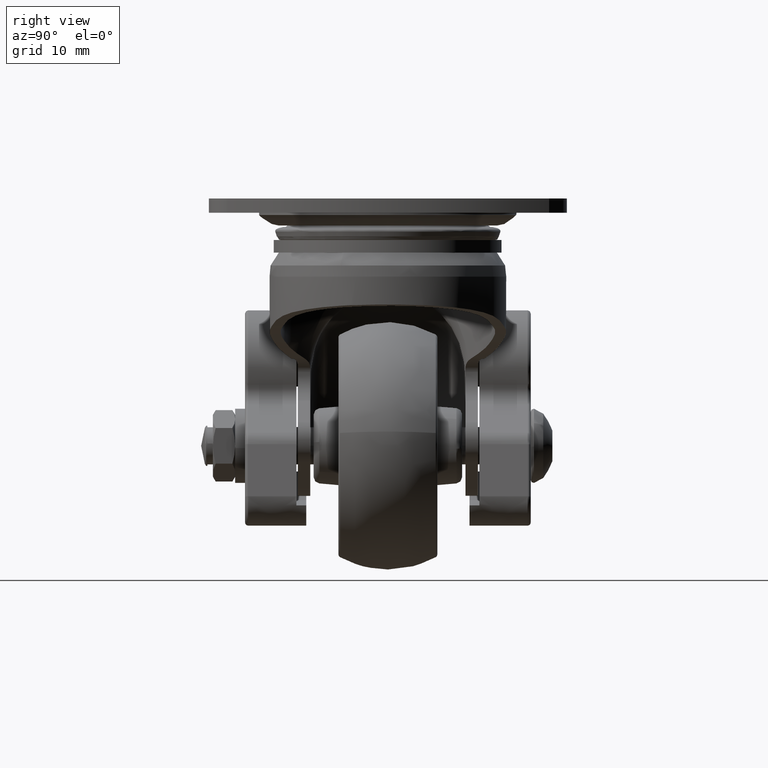
[diagram: clean part render]
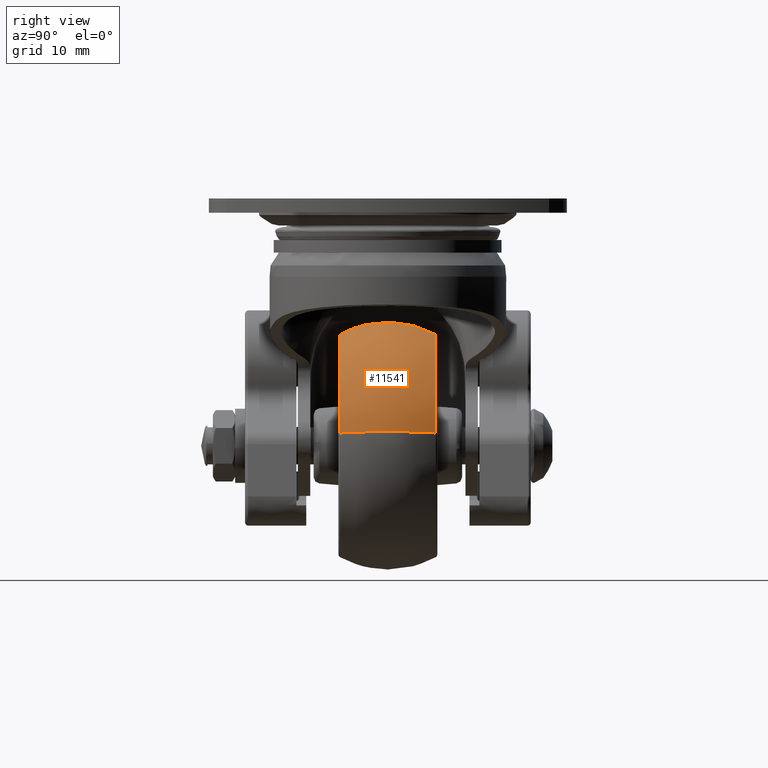
[diagram: same view with one face highlighted and labeled with its STEP entity id]
A machine part, right view. The second image highlights one B-rep face of the part: STEP entity #11541.
In plain terms, the highlighted face is a freeform B-spline surface patch.
Its self-contained STEP definition (entity closure, byte-faithful):
#11003=CARTESIAN_POINT('',(0.0,7.741952714832145,-21.997779884571209));
#11004=VERTEX_POINT('',#11003);
#11018=CARTESIAN_POINT('',(17.881824193224499,7.741935547283804,-37.921386432144438));
#11019=VERTEX_POINT('',#11018);
#11020=CARTESIAN_POINT('',(0.0,7.741952714832145,-21.997779884571209));
#11021=CARTESIAN_POINT('',(16.030836061764578,7.741944131057976,-21.997775138573157));
#11022=CARTESIAN_POINT('',(17.881824193224492,7.741935547283804,-37.921386432144438));
#11030=(BOUNDED_CURVE()B_SPLINE_CURVE(2,(#11020,#11021,#11022),.UNSPECIFIED.,.F.,.U.)B_SPLINE_CURVE_WITH_KNOTS((3,3),(0.0,0.229999999998973),.UNSPECIFIED.)CURVE()GEOMETRIC_REPRESENTATION_ITEM()RATIONAL_B_SPLINE_CURVE((1.0,0.730538238692826,0.956886118188639))REPRESENTATION_ITEM(''));
#11031=EDGE_CURVE('',#11004,#11019,#11030,.T.);
#11092=CARTESIAN_POINT('',(0.0,-7.741936109508062,-21.997770678026122));
#11093=VERTEX_POINT('',#11092);
#11156=CARTESIAN_POINT('',(15.665249883502430,-7.741935452028621,-31.129812845804992));
#11157=VERTEX_POINT('',#11156);
#11171=CARTESIAN_POINT('',(0.0,-7.741936109508062,-21.997770678026122));
#11172=CARTESIAN_POINT('',(10.494382676605845,-7.741935701241673,-21.997770446769177));
#11173=CARTESIAN_POINT('',(15.665249883502440,-7.741935452028621,-31.129812845804992));
#11181=(BOUNDED_CURVE()B_SPLINE_CURVE(2,(#11171,#11172,#11173),.UNSPECIFIED.,.F.,.U.)B_SPLINE_CURVE_WITH_KNOTS((3,3),(0.0,0.166016396880589),.UNSPECIFIED.)CURVE()GEOMETRIC_REPRESENTATION_ITEM()RATIONAL_B_SPLINE_CURVE((1.0,0.805499692567330,0.869321306991770))REPRESENTATION_ITEM(''));
#11182=EDGE_CURVE('',#11093,#11157,#11181,.T.);
#11225=CARTESIAN_POINT('',(17.881824247667581,-7.741935478677329,-37.921386425832651));
#11226=VERTEX_POINT('',#11225);
#11242=CARTESIAN_POINT('',(15.665249883502440,-7.741935452028621,-31.129812845804992));
#11243=CARTESIAN_POINT('',(17.461010887987737,-7.741935480309189,-34.301227929291379));
#11244=CARTESIAN_POINT('',(17.881824247667581,-7.741935478677329,-37.921386425832651));
#11252=(BOUNDED_CURVE()B_SPLINE_CURVE(2,(#11242,#11243,#11244),.UNSPECIFIED.,.F.,.U.)B_SPLINE_CURVE_WITH_KNOTS((3,3),(0.166016396880589,0.229999999999286),.UNSPECIFIED.)CURVE()GEOMETRIC_REPRESENTATION_ITEM()RATIONAL_B_SPLINE_CURVE((0.869321306991770,0.893918496934792,0.956886118189255))REPRESENTATION_ITEM(''));
#11253=EDGE_CURVE('',#11157,#11226,#11252,.T.);
#11482=CARTESIAN_POINT('',(17.881824193224499,7.741935547283804,-37.921386432144438));
#11483=CARTESIAN_POINT('',(22.133767149055039,0.000000049421817,-37.427133372668060));
#11484=CARTESIAN_POINT('',(17.881824247667588,-7.741935478677329,-37.921386425832651));
#11492=(BOUNDED_CURVE()B_SPLINE_CURVE(2,(#11482,#11483,#11484),.UNSPECIFIED.,.F.,.U.)B_SPLINE_CURVE_WITH_KNOTS((3,3),(0.362871079320423,0.637128919147413),.UNSPECIFIED.)CURVE()GEOMETRIC_REPRESENTATION_ITEM()RATIONAL_B_SPLINE_CURVE((0.929203502128084,0.813182549957636,0.929203500831762))REPRESENTATION_ITEM(''));
#11493=EDGE_CURVE('',#11019,#11226,#11492,.T.);
#11498=CARTESIAN_POINT('',(0.0,7.741952714832145,-21.997779884571205));
#11499=CARTESIAN_POINT('',(0.0,0.000010847849028,-17.717190995005712));
#11500=CARTESIAN_POINT('',(0.0,-7.741936109508062,-21.997770678026122));
#11508=(BOUNDED_CURVE()B_SPLINE_CURVE(2,(#11498,#11499,#11500),.UNSPECIFIED.,.F.,.U.)B_SPLINE_CURVE_WITH_KNOTS((3,3),(0.362870731853844,0.637128931843525),.UNSPECIFIED.)CURVE()GEOMETRIC_REPRESENTATION_ITEM()RATIONAL_B_SPLINE_CURVE((0.971070411040373,0.849821501364697,0.971070113683522))REPRESENTATION_ITEM(''));
#11509=EDGE_CURVE('',#11004,#11093,#11508,.T.);
#11517=CARTESIAN_POINT('',(0.0,8.405291915549663,-22.385630098517385));
#11518=CARTESIAN_POINT('',(0.0,0.000010735063349,-17.196345360002262));
#11519=CARTESIAN_POINT('',(0.0,-8.405276370574219,-22.385620501313085));
#11520=CARTESIAN_POINT('',(15.685450212566186,8.405291915549663,-22.385630098517399));
#11521=CARTESIAN_POINT('',(20.306465205441803,0.000010735063348,-17.196345360002265));
#11522=CARTESIAN_POINT('',(15.685458758796967,-8.405276370574223,-22.385620501313088));
#11523=CARTESIAN_POINT('',(17.496558633008313,8.405291915549663,-37.966170354243303));
#11524=CARTESIAN_POINT('',(22.651135560745185,0.000010735063349,-37.366993591151910));
#11525=CARTESIAN_POINT('',(17.496568166023049,-8.405276370574219,-37.966169246109516));
#11533=(BOUNDED_SURFACE()B_SPLINE_SURFACE(2,2,((#11517,#11520,#11523),(#11518,#11521,#11524),(#11519,#11522,#11525)),.UNSPECIFIED.,.F.,.F.,.U.)B_SPLINE_SURFACE_WITH_KNOTS((3,3),(3,3),(0.0,18.164765949100659),(0.0,30.452679126866499),.UNSPECIFIED.)GEOMETRIC_REPRESENTATION_ITEM()RATIONAL_B_SPLINE_SURFACE(((0.983788218913442,0.718694912690595,0.941373289917786),(0.837103704222520,0.611536265684954,0.801012914056510),(0.983787900094790,0.718694679781379,0.941372984844644)))REPRESENTATION_ITEM('')SURFACE());
#11534=ORIENTED_EDGE('',*,*,#11031,.F.);
#11535=ORIENTED_EDGE('',*,*,#11509,.T.);
#11536=ORIENTED_EDGE('',*,*,#11182,.T.);
#11537=ORIENTED_EDGE('',*,*,#11253,.T.);
#11538=ORIENTED_EDGE('',*,*,#11493,.F.);
#11539=EDGE_LOOP('',(#11534,#11535,#11536,#11537,#11538));
#11540=FACE_OUTER_BOUND('',#11539,.T.);
#11541=ADVANCED_FACE('',(#11540),#11533,.T.);